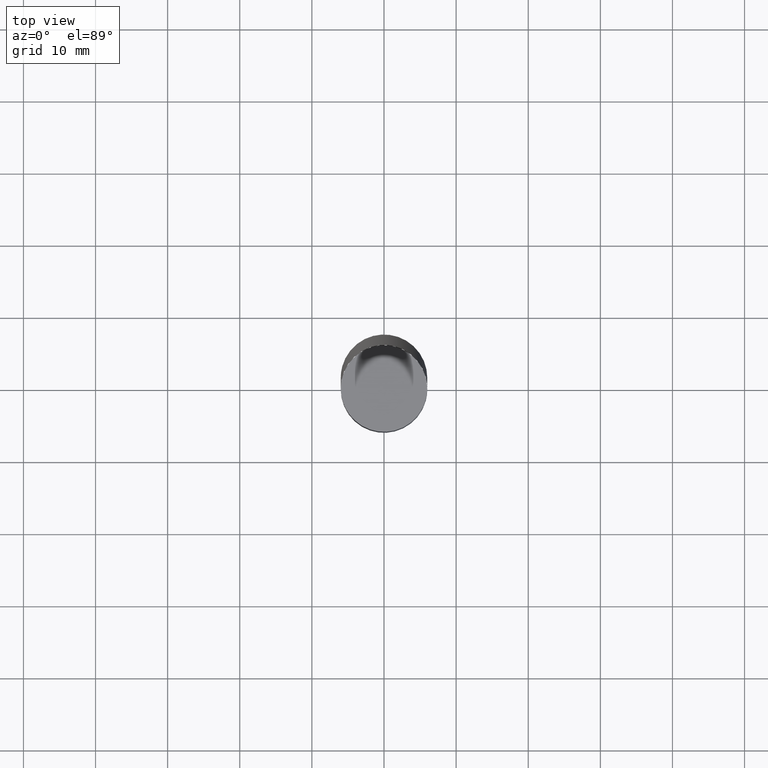
[diagram: clean part render]
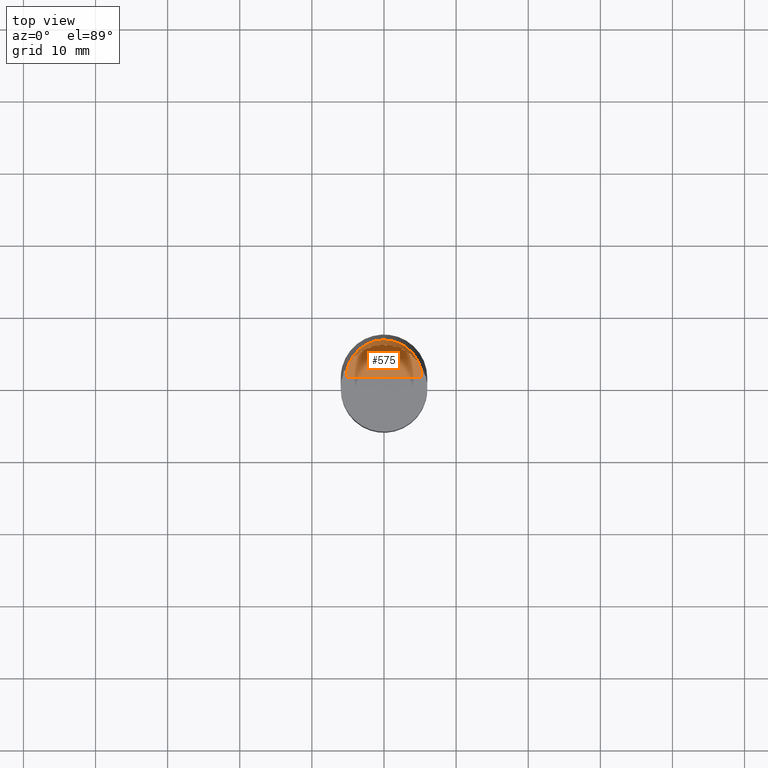
[diagram: same view with one face highlighted and labeled with its STEP entity id]
A machine part, top view. The second image highlights one B-rep face of the part: STEP entity #575.
In plain terms, the highlighted face is a freeform B-spline surface patch.
Its self-contained STEP definition (entity closure, byte-faithful):
#356=CARTESIAN_POINT('',(5.25,0.0,84.0));
#357=CARTESIAN_POINT('',(5.25,5.25,84.0));
#358=CARTESIAN_POINT('',(0.0,5.25,84.0));
#359=CARTESIAN_POINT('',(-5.25,5.25,84.0));
#360=CARTESIAN_POINT('',(-5.25,0.0,84.0));
#361=CARTESIAN_POINT('',(0.0,0.0,84.0));
#560=(
BOUNDED_SURFACE()
B_SPLINE_SURFACE(1,2,(
(#356,#357,#358,#359,#360),
(#361,#361,#361,#361,#361)
), .UNSPECIFIED.,.F.,.F.,.F.)
B_SPLINE_SURFACE_WITH_KNOTS((2,2),(3,2,3),(
0.0,1.0),(
0.0,0.5,1.0), .UNSPECIFIED.)
GEOMETRIC_REPRESENTATION_ITEM()
RATIONAL_B_SPLINE_SURFACE(((1.0,0.707106781187,1.0,0.707106781187,1.0),
(1.0,0.707106781187,1.0,0.707106781187,1.0)
))
REPRESENTATION_ITEM('')
SURFACE()
);
#561=(
BOUNDED_CURVE()
B_SPLINE_CURVE(2,(#360,#359,#358,#357,#356),.UNSPECIFIED.,.F.,.F.)
B_SPLINE_CURVE_WITH_KNOTS((3,2,3),
(0.0,0.5,1.0),.UNSPECIFIED.)
CURVE()
GEOMETRIC_REPRESENTATION_ITEM()
RATIONAL_B_SPLINE_CURVE((1.0,0.707106781187,1.0,0.707106781187,1.0))
REPRESENTATION_ITEM('')
);
#562=(
BOUNDED_CURVE()
B_SPLINE_CURVE(1,(#356,#361),.UNSPECIFIED.,.F.,.F.)
B_SPLINE_CURVE_WITH_KNOTS((2,2),
(0.0,1.0),.UNSPECIFIED.)
CURVE()
GEOMETRIC_REPRESENTATION_ITEM()
RATIONAL_B_SPLINE_CURVE((1.0,1.0))
REPRESENTATION_ITEM('')
);
#563=(
BOUNDED_CURVE()
B_SPLINE_CURVE(1,(#361,#360),.UNSPECIFIED.,.F.,.F.)
B_SPLINE_CURVE_WITH_KNOTS((2,2),
(0.0,1.0),.UNSPECIFIED.)
CURVE()
GEOMETRIC_REPRESENTATION_ITEM()
RATIONAL_B_SPLINE_CURVE((1.0,1.0))
REPRESENTATION_ITEM('')
);
#564=VERTEX_POINT('',#356);
#565=VERTEX_POINT('',#360);
#566=VERTEX_POINT('',#361);
#567=EDGE_CURVE('',#565,#564,#561,.T.);
#568=EDGE_CURVE('',#564,#566,#562,.T.);
#569=EDGE_CURVE('',#566,#565,#563,.T.);
#570=ORIENTED_EDGE('',*,*,#567,.T.);
#571=ORIENTED_EDGE('',*,*,#568,.T.);
#572=ORIENTED_EDGE('',*,*,#569,.T.);
#573=EDGE_LOOP('',(#570,#571,#572));
#574=FACE_OUTER_BOUND('',#573,.T.);
#575=ADVANCED_FACE('',(#574),#560,.T.);